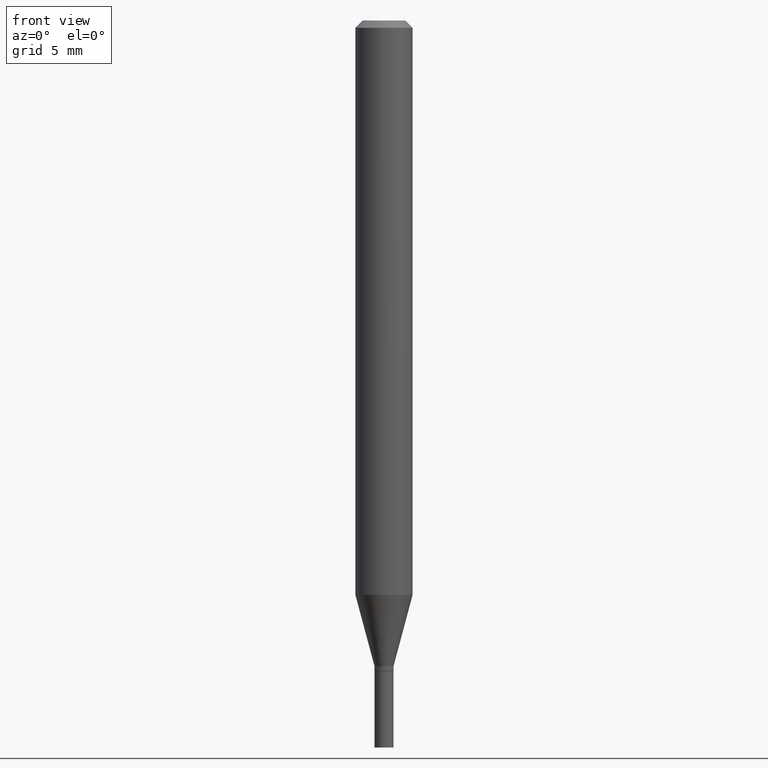
[diagram: clean part render]
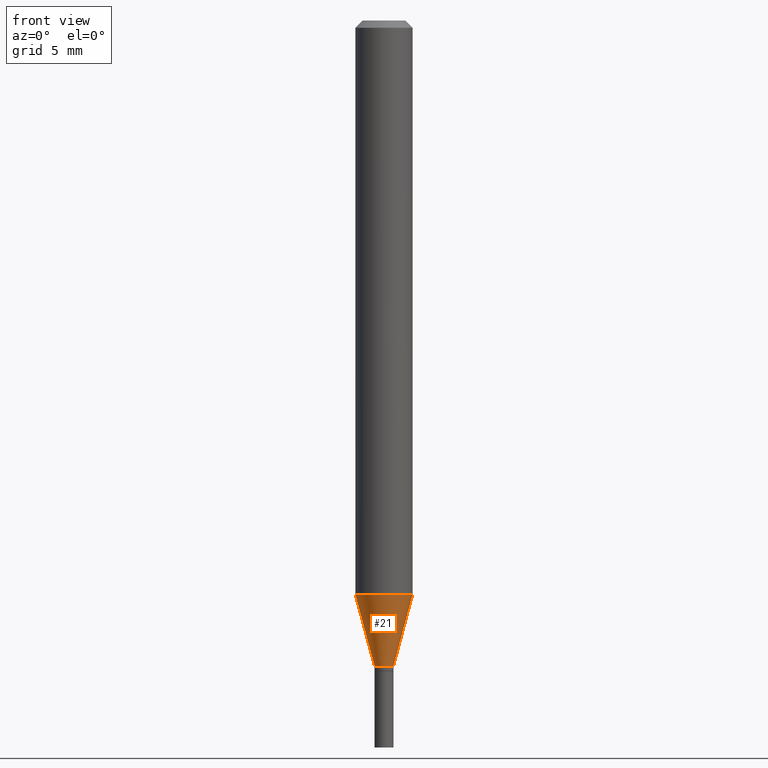
[diagram: same view with one face highlighted and labeled with its STEP entity id]
A machine part, front view. The second image highlights one B-rep face of the part: STEP entity #21.
In plain terms, the highlighted conical surface has half-angle 15 deg.
Its self-contained STEP definition (entity closure, byte-faithful):
#21 = ADVANCED_FACE ( 'NONE', ( #276 ), #182, .T. ) ;
#36 = CARTESIAN_POINT ( 'NONE',  ( -0.01969999999999989468, -4.114504101497534251E-15, -1.331999999999999851 ) ) ;
#53 = CIRCLE ( 'NONE', #325, 0.05905000000000001914 ) ;
#56 = DIRECTION ( 'NONE',  ( -2.445468806185136597E-29, 3.491481338843145583E-15, 1.000000000000000000 ) ) ;
#60 = CARTESIAN_POINT ( 'NONE',  ( -0.05905000000000001914, -3.718331978600737710E-15, -1.185143800722164409 ) ) ;
#78 = VERTEX_POINT ( 'NONE', #60 ) ;
#83 = DIRECTION ( 'NONE',  ( -2.445468806185136597E-29, 3.491481338843145583E-15, 1.000000000000000000 ) ) ;
#95 = VECTOR ( 'NONE', #297, 39.37007874015748854 ) ;
#120 = CARTESIAN_POINT ( 'NONE',  ( 2.898232195509746702E-29, -4.137907464067076414E-15, -1.185143800722164409 ) ) ;
#155 = EDGE_CURVE ( 'NONE', #208, #348, #360, .T. ) ;
#167 = CARTESIAN_POINT ( 'NONE',  ( 3.257364449838602072E-29, -4.650653143339069312E-15, -1.331999999999999851 ) ) ;
#177 = LINE ( 'NONE', #329, #300 ) ;
#178 = CARTESIAN_POINT ( 'NONE',  ( 0.05905000000000001914, -4.550251410184451334E-15, -1.185143800722164409 ) ) ;
#182 = CONICAL_SURFACE ( 'NONE', #449, 0.01969999999999989468, 0.2617993877991499074 ) ;
#188 = CARTESIAN_POINT ( 'NONE',  ( 0.01969999999999989468, -4.788217508089488526E-15, -1.331999999999999851 ) ) ;
#205 = DIRECTION ( 'NONE',  ( -2.445468806185136597E-29, 3.491481338843145583E-15, 1.000000000000000000 ) ) ;
#208 = VERTEX_POINT ( 'NONE', #36 ) ;
#210 = EDGE_CURVE ( 'NONE', #208, #78, #177, .T. ) ;
#221 = LINE ( 'NONE', #411, #95 ) ;
#222 = DIRECTION ( 'NONE',  ( -0.2588190451025211836, 5.211531920934547886E-15, 0.9659258262890679791 ) ) ;
#246 = DIRECTION ( 'NONE',  ( 1.000000000000000000, -6.982962677686266711E-15, 0.000000000000000000 ) ) ;
#257 = ORIENTED_EDGE ( 'NONE', *, *, #347, .T. ) ;
#276 = FACE_OUTER_BOUND ( 'NONE', #434, .T. ) ;
#285 = ORIENTED_EDGE ( 'NONE', *, *, #289, .F. ) ;
#289 = EDGE_CURVE ( 'NONE', #78, #438, #53, .T. ) ;
#297 = DIRECTION ( 'NONE',  ( 0.2588190451025211836, 1.565188264969622559E-15, 0.9659258262890679791 ) ) ;
#300 = VECTOR ( 'NONE', #222, 39.37007874015748854 ) ;
#304 = ORIENTED_EDGE ( 'NONE', *, *, #210, .F. ) ;
#319 = DIRECTION ( 'NONE',  ( 1.000000000000000000, -6.982962677686266711E-15, 0.000000000000000000 ) ) ;
#325 = AXIS2_PLACEMENT_3D ( 'NONE', #120, #83, #388 ) ;
#329 = CARTESIAN_POINT ( 'NONE',  ( -0.01969999999999989468, -4.510676224394330003E-15, -1.331999999999999851 ) ) ;
#347 = EDGE_CURVE ( 'NONE', #348, #438, #221, .T. ) ;
#348 = VERTEX_POINT ( 'NONE', #188 ) ;
#360 = CIRCLE ( 'NONE', #366, 0.01969999999999989468 ) ;
#364 = CARTESIAN_POINT ( 'NONE',  ( 3.257364449838602072E-29, -4.650653143339069312E-15, -1.331999999999999851 ) ) ;
#366 = AXIS2_PLACEMENT_3D ( 'NONE', #167, #56, #319 ) ;
#388 = DIRECTION ( 'NONE',  ( 1.000000000000000000, -6.982962677686270655E-15, 0.000000000000000000 ) ) ;
#407 = ORIENTED_EDGE ( 'NONE', *, *, #155, .T. ) ;
#411 = CARTESIAN_POINT ( 'NONE',  ( 0.01969999999999989468, -4.788217508089488526E-15, -1.331999999999999851 ) ) ;
#434 = EDGE_LOOP ( 'NONE', ( #304, #407, #257, #285 ) ) ;
#438 = VERTEX_POINT ( 'NONE', #178 ) ;
#449 = AXIS2_PLACEMENT_3D ( 'NONE', #364, #205, #246 ) ;